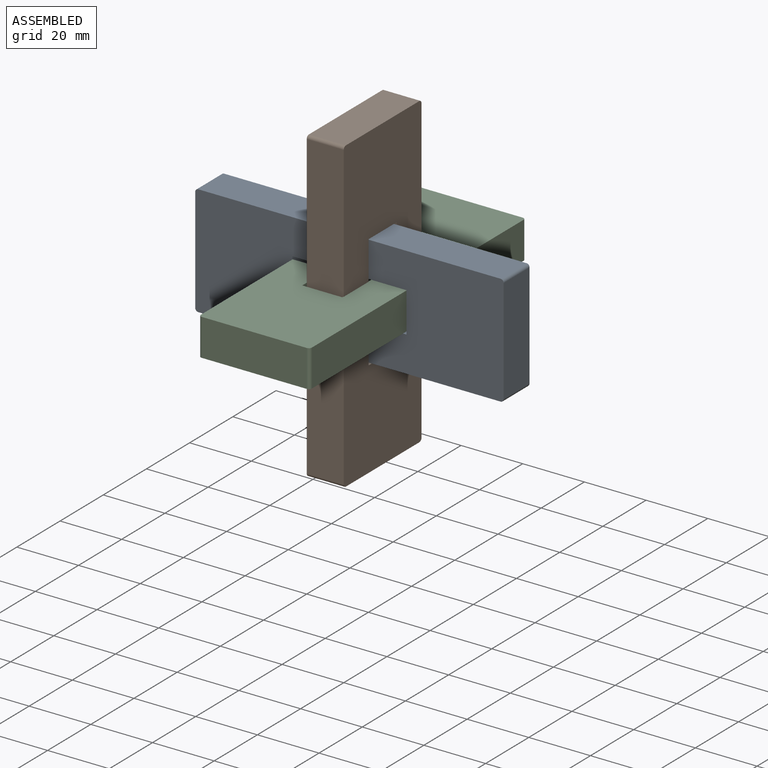
[diagram: assembled view]
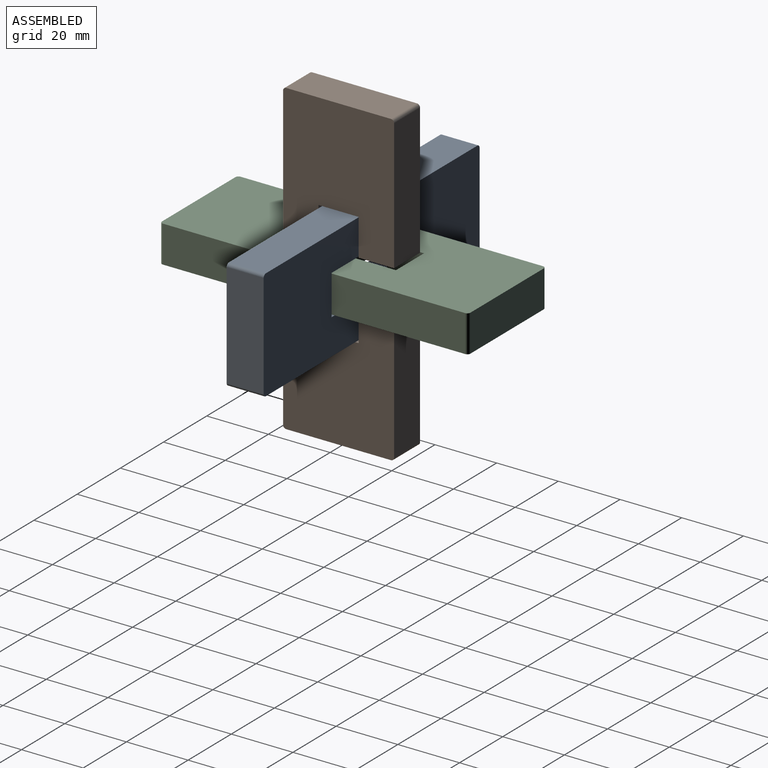
[diagram: assembled view, second angle]
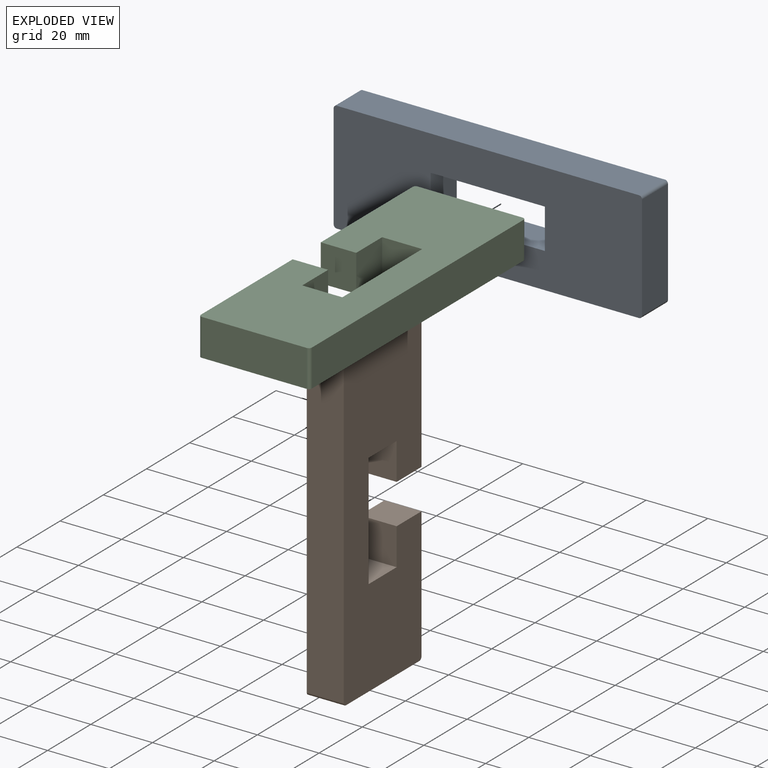
[diagram: exploded view]
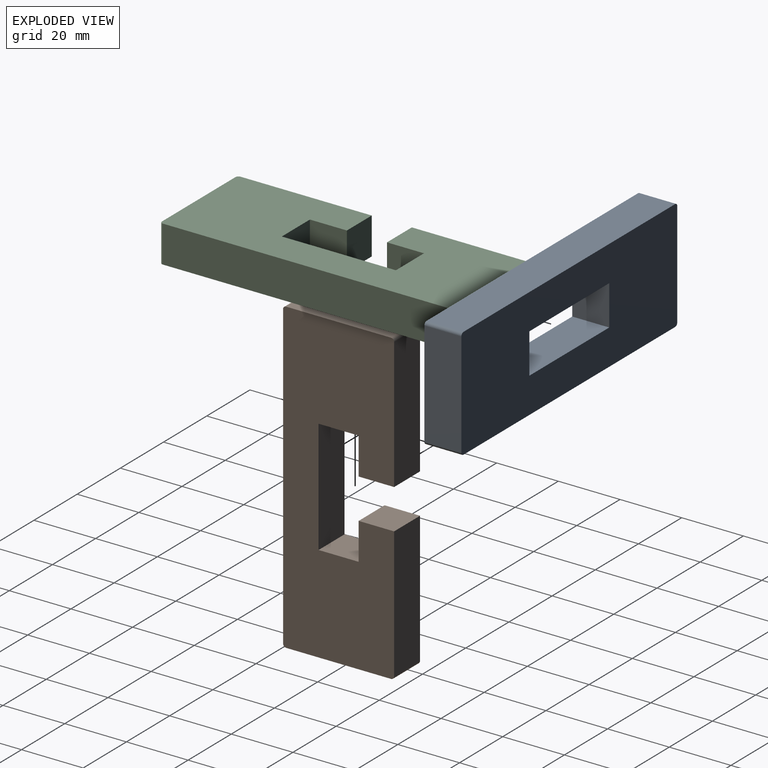
[diagram: exploded view, second angle]
ASSEMBLY  parts=3 mates=2
PART A: 14 faces, bbox 36x100x12 mm
  f0: plane 37x12mm, normal (1,0,0), area 444mm2, adj f1,f11,f12,f13
  f1: plane 13x12mm, normal (0,-1,0), area 156mm2, adj f0,f2,f12,f13
  f2: plane 37x12mm, normal (-1,0,0), area 444mm2, adj f1,f11,f12,f13
  f3: cylinder r=1mm len=12mm, axis (0,0,-1), area 18.8mm2, adj f4,f10,f12,f13
  f4: plane 98x12mm, normal (-1,0,0), area 1176mm2, adj f3,f5,f12,f13
  f5: cylinder r=1mm len=12mm, axis (0,0,-1), area 18.8mm2, adj f4,f6,f12,f13
  f6: plane 34x12mm, normal (0,-1,0), area 408mm2, adj f5,f7,f12,f13
  f7: cylinder r=1mm len=12mm, axis (0,0,-1), area 18.8mm2, adj f6,f8,f12,f13
  f8: plane 98x12mm, normal (1,0,0), area 1176mm2, adj f7,f9,f12,f13
  f9: cylinder r=1mm len=12mm, axis (0,0,-1), area 18.8mm2, adj f8,f10,f12,f13
  f10: plane 34x12mm, normal (0,1,0), area 408mm2, adj f3,f9,f12,f13
  f11: plane 13x12mm, normal (0,1,0), area 156mm2, adj f0,f2,f12,f13
  f12: plane 100x36mm, normal (0,0,1), area 3118.1mm2, adj f0,f1,f2,f3,f4,f5,f6,f7
  f13: plane 100x36mm, normal (0,0,-1), area 3118.1mm2, adj f0,f1,f2,f3,f4,f5,f6,f7
PART B: 18 faces, bbox 36x100x12 mm
  f0: plane 12x11.5mm, normal (0,-1,0), area 138mm2, adj f1,f15,f16,f17
  f1: plane 12x12mm, normal (1,0,0), area 144mm2, adj f0,f2,f16,f17
  f2: plane 13x12mm, normal (0,-1,0), area 156mm2, adj f1,f3,f16,f17
  f3: plane 37x12mm, normal (-1,0,0), area 444mm2, adj f2,f4,f16,f17
  f4: plane 13x12mm, normal (0,1,0), area 156mm2, adj f3,f5,f16,f17
  f5: plane 12x12mm, normal (1,0,0), area 144mm2, adj f4,f6,f16,f17
  f6: plane 12x11.5mm, normal (0,1,0), area 138mm2, adj f5,f7,f16,f17
  f7: plane 42.5x12mm, normal (-1,0,0), area 510mm2, adj f6,f8,f16,f17
  f8: cylinder r=1mm len=12mm, axis (0,0,-1), area 18.8mm2, adj f7,f9,f16,f17
  f9: plane 34x12mm, normal (0,-1,0), area 408mm2, adj f8,f10,f16,f17
  f10: cylinder r=1mm len=12mm, axis (0,0,-1), area 18.8mm2, adj f9,f11,f16,f17
  f11: plane 98x12mm, normal (1,0,0), area 1176mm2, adj f10,f12,f16,f17
  f12: cylinder r=1mm len=12mm, axis (0,0,-1), area 18.8mm2, adj f11,f13,f16,f17
  f13: plane 34x12mm, normal (0,1,0), area 408mm2, adj f12,f14,f16,f17
  f14: cylinder r=1mm len=12mm, axis (0,0,-1), area 18.8mm2, adj f13,f15,f16,f17
  f15: plane 42.5x12mm, normal (-1,0,0), area 510mm2, adj f0,f14,f16,f17
  f16: plane 100x36mm, normal (0,0,1), area 2968.6mm2, adj f0,f1,f2,f3,f4,f5,f6,f7
  f17: plane 100x36mm, normal (0,0,-1), area 2968.6mm2, adj f0,f1,f2,f3,f4,f5,f6,f7
PART C: 18 faces, bbox 36x100x12 mm
  f0: plane 12x11.5mm, normal (0,-1,0), area 138mm2, adj f1,f15,f16,f17
  f1: plane 12x12mm, normal (1,0,0), area 144mm2, adj f0,f2,f16,f17
  f2: plane 13x12mm, normal (0,-1,0), area 156mm2, adj f1,f3,f16,f17
  f3: plane 37x12mm, normal (-1,0,0), area 444mm2, adj f2,f4,f16,f17
  f4: plane 13x12mm, normal (0,1,0), area 156mm2, adj f3,f5,f16,f17
  f5: plane 12x12mm, normal (1,0,0), area 144mm2, adj f4,f6,f16,f17
  f6: plane 12x11.5mm, normal (0,1,0), area 138mm2, adj f5,f7,f16,f17
  f7: plane 42.5x12mm, normal (-1,0,0), area 510mm2, adj f6,f8,f16,f17
  f8: cylinder r=1mm len=12mm, axis (0,0,-1), area 18.8mm2, adj f7,f9,f16,f17
  f9: plane 34x12mm, normal (0,-1,0), area 408mm2, adj f8,f10,f16,f17
  f10: cylinder r=1mm len=12mm, axis (0,0,-1), area 18.8mm2, adj f9,f11,f16,f17
  f11: plane 98x12mm, normal (1,0,0), area 1176mm2, adj f10,f12,f16,f17
  f12: cylinder r=1mm len=12mm, axis (0,0,-1), area 18.8mm2, adj f11,f13,f16,f17
  f13: plane 34x12mm, normal (0,1,0), area 408mm2, adj f12,f14,f16,f17
  f14: cylinder r=1mm len=12mm, axis (0,0,-1), area 18.8mm2, adj f13,f15,f16,f17
  f15: plane 42.5x12mm, normal (-1,0,0), area 510mm2, adj f0,f14,f16,f17
  f16: plane 100x36mm, normal (0,0,1), area 2968.6mm2, adj f0,f1,f2,f3,f4,f5,f6,f7
  f17: plane 100x36mm, normal (0,0,-1), area 2968.6mm2, adj f0,f1,f2,f3,f4,f5,f6,f7
PLACE A rot(axis=(0.58,-0.58,0.58),120deg) t=(-164.77,-92.83,-55.92)mm fixed
PLACE B rot(axis=(-0.58,0.58,-0.58),120deg) t=(-120.15,51.1,-87.94)mm
PLACE C t=(-198.77,-48.9,-43.92)mm
MATE slider A.f12 <-> C.f9  axis (0,-1,0) through (-114.77,-104.83,-37.92)mm
MATE slider C.f16 <-> B.f9  axis (0,0,1) through (-114.15,-98.9,-31.92)mm
